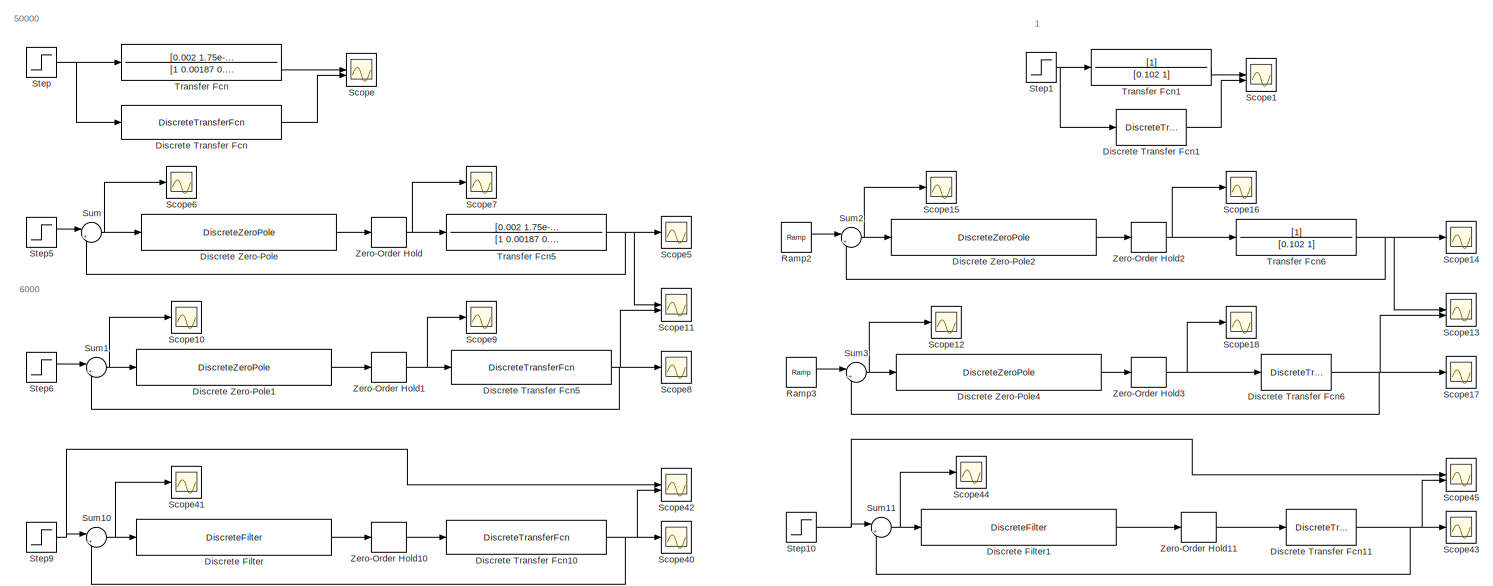
[diagram: root canvas - part 1/3, left side, full height]
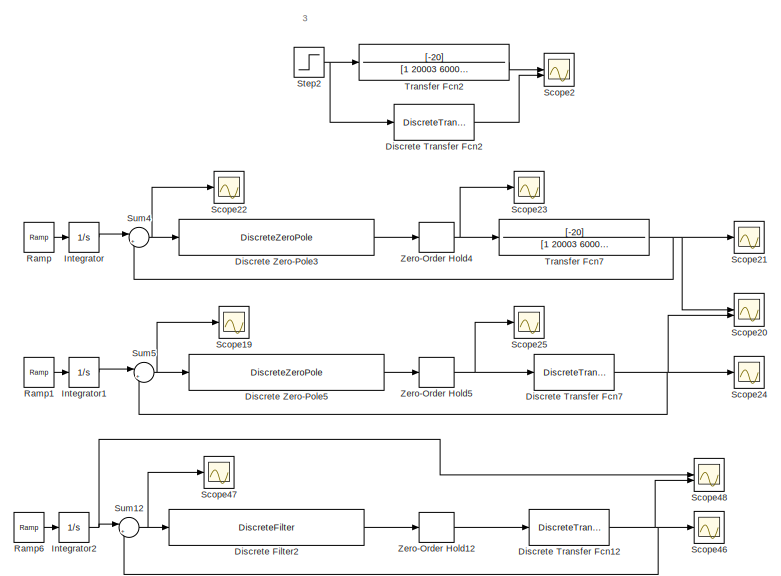
[diagram: root canvas - part 2/3, center side, full height]
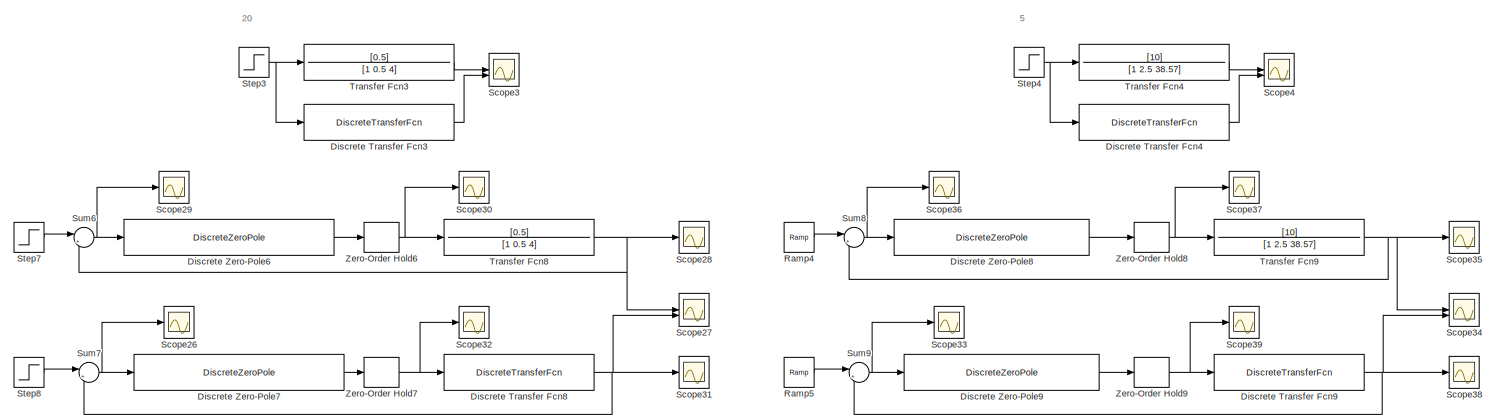
[diagram: root canvas - part 3/3, middle right region]
MODEL slx_3ba39c89f37c
KIND model
CONFIG AbsTol = auto
CONFIG EnableMultiTasking = off
CONFIG FixedStep = auto
CONFIG MaxStep = auto
CONFIG MinStep = auto
CONFIG RelTol = 1e-3
CONFIG SampleTimeConstraint = Unconstrained
CONFIG SolverName = VariableStepAuto
CONFIG StartTime = 0.0
CONFIG StopTime = 5
BLOCK [DiscreteFilter] Discrete Filter
  Denominator = conv([1, 0.4735],[1, -2, 1])
  InputPortMap = u0
  Numerator = conv([2, -2.8862, 0.9431],[1, -0.5018])/0.67
BLOCK [DiscreteFilter] Discrete Filter1
  Denominator = [1, -2, 1]
  InputPortMap = u0
  Numerator = conv([2, -1],[1, -0.745])/0.255
BLOCK [DiscreteFilter] Discrete Filter2
  Denominator = [1, -1.93e-5, 1.93e-5]
  InputPortMap = u0
  Numerator = [-1, 1, -0.942]
BLOCK [DiscreteTransferFcn] Discrete Transfer Fcn
  Denominator = [1 -1.445 0.4733]
  InputPortMap = u0
  Numerator = [0.67 -0.4735]
BLOCK [DiscreteTransferFcn] Discrete Transfer Fcn1
  Denominator = [1 -0.745]
  InputPortMap = u0
  Numerator = [0.255]
BLOCK [DiscreteTransferFcn] Discrete Transfer Fcn10
  Denominator = [1 -1.445 0.4733]
  InputPortMap = u0
  Numerator = [0.67 -0.4735]
BLOCK [DiscreteTransferFcn] Discrete Transfer Fcn11
  Denominator = [1 -0.745]
  InputPortMap = u0
  Numerator = [0.255]
BLOCK [DiscreteTransferFcn] Discrete Transfer Fcn12
  Denominator = [1 -0.942]
  InputPortMap = u0
  Numerator = [-1.93e-5]
BLOCK [DiscreteTransferFcn] Discrete Transfer Fcn2
  Denominator = [1 -0.942]
  InputPortMap = u0
  Numerator = [-1.93e-5]
BLOCK [DiscreteTransferFcn] Discrete Transfer Fcn3
  Denominator = [1 -1.754 0.904]
  InputPortMap = u0
  Numerator = [0.00937 0.00937]
BLOCK [DiscreteTransferFcn] Discrete Transfer Fcn4
  Denominator = [1 -0.544 0.6065]
  InputPortMap = u0
  Numerator = [0.1157 0.0989]
BLOCK [DiscreteTransferFcn] Discrete Transfer Fcn5
  Denominator = [1 -1.445 0.4733]
  InputPortMap = u0
  Numerator = [0.67 -0.4735]
BLOCK [DiscreteTransferFcn] Discrete Transfer Fcn6
  Denominator = [1 -0.745]
  InputPortMap = u0
  Numerator = [0.255]
BLOCK [DiscreteTransferFcn] Discrete Transfer Fcn7
  Denominator = [1 -0.942]
  InputPortMap = u0
  Numerator = [-1.93e-5]
BLOCK [DiscreteTransferFcn] Discrete Transfer Fcn8
  Denominator = [1 -1.754 0.904]
  InputPortMap = u0
  Numerator = [0.00937 0.00937]
BLOCK [DiscreteTransferFcn] Discrete Transfer Fcn9
  Denominator = [1 -0.544 0.6065]
  InputPortMap = u0
  Numerator = [0.1157 0.0989]
BLOCK [DiscreteZeroPole] Discrete Zero-Pole
  Gain = 3.25e-4
  Poles = [1 0.7364 0.7364 0.7364]
  SampleTime = 400
  Zeros = [0.9432 0.9432 0.9432]
BLOCK [DiscreteZeroPole] Discrete Zero-Pole1
  Gain = 3.25e-4
  Poles = [1 0.7364 0.7364 0.7364]
  SampleTime = 400
  Zeros = [0.9432 0.9432 0.9432]
BLOCK [DiscreteZeroPole] Discrete Zero-Pole2
  Gain = 1.031e-2
  Poles = [1 1 0.6749 0.6749 0.6749]
  SampleTime = 0.05
  Zeros = [0.745 0.745 0.745]
BLOCK [DiscreteZeroPole] Discrete Zero-Pole3
  Gain = -0.0433
  Poles = [1 1 1 0.936 0.936 0.936]
  SampleTime = 0.02
  Zeros = [0.942 0.942 0.942]
BLOCK [DiscreteZeroPole] Discrete Zero-Pole4
  Gain = 1.031e-2
  Poles = [1 1 0.6749 0.6749 0.6749]
  SampleTime = 0.05
  Zeros = [0.745 0.745 0.745]
BLOCK [DiscreteZeroPole] Discrete Zero-Pole5
  Gain = -0.0433
  Poles = [1 1 1 0.936 0.936 0.936]
  SampleTime = 0.02
  Zeros = [0.942 0.942 0.942]
BLOCK [DiscreteZeroPole] Discrete Zero-Pole6
  Gain = 0.01468
  Poles = [1 1 0.9581 0.9581 0.9581]
  SampleTime = 0.2
  Zeros = [0.9549 0.9549 0.9549]
BLOCK [DiscreteZeroPole] Discrete Zero-Pole7
  Gain = 0.01468
  Poles = [1 1 0.9581 0.9581 0.9581]
  SampleTime = 0.2
  Zeros = [0.9549 0.9549 0.9549]
BLOCK [DiscreteZeroPole] Discrete Zero-Pole8
  Gain = 3.75
  Poles = [1 1 0.952 0.952]
  SampleTime = 0.2
  Zeros = [0.717 0.717]
BLOCK [DiscreteZeroPole] Discrete Zero-Pole9
  Gain = 3.75
  Poles = [1 1 0.952 0.952]
  SampleTime = 0.2
  Zeros = [0.717 0.717]
BLOCK [Integrator] Integrator
BLOCK [Integrator] Integrator1
BLOCK [Integrator] Integrator2
BLOCK [Reference] Ramp  REF=simulink/Sources/Ramp
  SourceBlock = simulink/Sources/Ramp
  SourceType = Ramp
BLOCK [Reference] Ramp1  REF=simulink/Sources/Ramp
  SourceBlock = simulink/Sources/Ramp
  SourceType = Ramp
BLOCK [Reference] Ramp2  REF=simulink/Sources/Ramp
  SourceBlock = simulink/Sources/Ramp
  SourceType = Ramp
BLOCK [Reference] Ramp3  REF=simulink/Sources/Ramp
  SourceBlock = simulink/Sources/Ramp
  SourceType = Ramp
BLOCK [Reference] Ramp4  REF=simulink/Sources/Ramp
  SourceBlock = simulink/Sources/Ramp
  SourceType = Ramp
BLOCK [Reference] Ramp5  REF=simulink/Sources/Ramp
  SourceBlock = simulink/Sources/Ramp
  SourceType = Ramp
BLOCK [Reference] Ramp6  REF=simulink/Sources/Ramp
  SourceBlock = simulink/Sources/Ramp
  SourceType = Ramp
BLOCK [Scope] Scope
  ActiveDisplayYMaximum = 7.8698854935552909
  ActiveDisplayYMinimum = -0.87443172150614323
  Floating = off
  GraphicalSettings = {"Style":{"BackgroundColor":[0.12941176470588237,0.12941176470588237,0.12941176470588237],"AxesColor":[0.07058823529411765,0.07058823529411765,0.07058823529411765],"LabelsColor":[0.8509803921568627,0.8509803921568627,0.8509803921568627],"PreserveColors":false,"Visible":[true,true],"LineStyle":["-","-"],"LineWidth":[1.5,1.5],"BarWidth":[0.9,0.9],"LineColor":["auto","auto"],"LineFaceAlpha":[1,1],"Li...<+2148ch>
  MultipleDisplayCache = [{"MaxYLimMag":7.8698854935552909,"MaxYLimReal":7.8698854935552909,"MinYLimMag":0,"MinYLimReal":-0.87443172150614323,"PlotAsMagnitudePhase":false,"ShowGrid":true,"ShowLegend":false,"Title":"%<SignalLabel>","YLabel":""}]
  NumInputPorts = 2
  ScopeFrameLocation = window
  WasSavedAsWebScope = on
  WindowPosition = [403.000000,174.000000,560.000000,420.000000,]
BLOCK [Scope] Scope1
  ActiveDisplayYMaximum = 1.1249999999998153
  ActiveDisplayYMinimum = -0.12499999999997945
  DataLoggingVariableName = ScopeData1
  Floating = off
  GraphicalSettings = {"Style":{"BackgroundColor":[0.12941176470588237,0.12941176470588237,0.12941176470588237],"AxesColor":[0.07058823529411765,0.07058823529411765,0.07058823529411765],"LabelsColor":[0.8509803921568627,0.8509803921568627,0.8509803921568627],"PreserveColors":false,"Visible":[true,true],"LineStyle":["-","-"],"LineWidth":[1.5,1.5],"BarWidth":[0.9,0.9],"LineColor":["auto","auto"],"LineFaceAlpha":[1,1],"Li...<+2156ch>
  MultipleDisplayCache = [{"MaxYLimMag":1.1249999999998153,"MaxYLimReal":1.1249999999998153,"MinYLimMag":0,"MinYLimReal":-0.12499999999997945,"PlotAsMagnitudePhase":false,"ShowGrid":true,"ShowLegend":false,"Title":"%<SignalLabel>","YLabel":""}]
  NumInputPorts = 2
  ScopeFrameLocation = window
  WasSavedAsWebScope = on
  WindowPosition = [403.000000,174.000000,560.000000,420.000000,]
BLOCK [Scope] Scope10
  DataLoggingVariableName = ScopeData10
  Floating = off
  GraphicalSettings = {"GraphicalSettings":{"LegacySettings":true,"Style":{"Style":{"PlotType":"Auto"}}}}
  NumInputPorts = 1
  WasSavedAsWebScope = on
BLOCK [Scope] Scope11
  ActiveDisplayYMaximum = 1
  ActiveDisplayYMinimum = -1
  DataLoggingVariableName = ScopeData11
  Floating = off
  GraphicalSettings = {"Style":{"BackgroundColor":[0.12941176470588237,0.12941176470588237,0.12941176470588237],"AxesColor":[0.07058823529411765,0.07058823529411765,0.07058823529411765],"LabelsColor":[0.8509803921568627,0.8509803921568627,0.8509803921568627],"PreserveColors":false,"Visible":[true,true],"LineStyle":["-","-"],"LineWidth":[1.5,1.5],"BarWidth":[0.9,0.9],"LineColor":["auto","auto"],"LineFaceAlpha":[1,1],"Li...<+2053ch>  <repeated x5 — deduplicated; at blocks: Scope11, Scope13, Scope20, Scope27, Scope34>
  MultipleDisplayCache = [{"MaxYLimMag":1,"MaxYLimReal":1,"MinYLimMag":0,"MinYLimReal":-1,"PlotAsMagnitudePhase":false,"ShowGrid":true,"ShowLegend":false,"Title":"%<SignalLabel>","YLabel":""}]
  NumInputPorts = 2
  ScopeFrameLocation = window
  WasSavedAsWebScope = on
  WindowPosition = [403.000000,174.000000,560.000000,420.000000,]
BLOCK [Scope] Scope12
  ActiveDisplayYMaximum = 1
  ActiveDisplayYMinimum = -1
  DataLoggingVariableName = ScopeData12
  Floating = off
  GraphicalSettings = {"Style":{"BackgroundColor":[0.12941176470588237,0.12941176470588237,0.12941176470588237],"AxesColor":[0.07058823529411765,0.07058823529411765,0.07058823529411765],"LabelsColor":[0.8509803921568627,0.8509803921568627,0.8509803921568627],"PreserveColors":false,"Visible":[true],"LineStyle":["-"],"LineWidth":[1.5],"BarWidth":[0.9],"LineColor":["auto"],"LineFaceAlpha":[1],"LineEdgeAlpha":[1],"Marker":...<+1890ch>  <repeated x7 — deduplicated; at blocks: Scope12, Scope19, Scope22, Scope26, Scope29, Scope33, Scope36>
  MultipleDisplayCache = [{"MaxYLimMag":1,"MaxYLimReal":1,"MinYLimMag":0,"MinYLimReal":-1,"PlotAsMagnitudePhase":false,"ShowGrid":true,"ShowLegend":false,"Title":"%<SignalLabel>","YLabel":""}]
  NumInputPorts = 1
  ScopeFrameLocation = window
  WasSavedAsWebScope = on
  WindowPosition = [403.000000,174.000000,560.000000,420.000000,]
BLOCK [Scope] Scope13
  ActiveDisplayYMaximum = 1
  ActiveDisplayYMinimum = -1
  DataLoggingVariableName = ScopeData13
  Floating = off
  MultipleDisplayCache = [{"MaxYLimMag":1,"MaxYLimReal":1,"MinYLimMag":0,"MinYLimReal":-1,"PlotAsMagnitudePhase":false,"ShowGrid":true,"ShowLegend":false,"Title":"%<SignalLabel>","YLabel":""}]
  NumInputPorts = 2
  ScopeFrameLocation = window
  WasSavedAsWebScope = on
  WindowPosition = [403.000000,174.000000,560.000000,420.000000,]
BLOCK [Scope] Scope14
  ActiveDisplayYMaximum = 1
  ActiveDisplayYMinimum = -1
  DataLoggingVariableName = ScopeData14
  Floating = off
  GraphicalSettings = {"Style":{"BackgroundColor":[0.12941176470588237,0.12941176470588237,0.12941176470588237],"AxesColor":[0.07058823529411765,0.07058823529411765,0.07058823529411765],"LabelsColor":[0.8509803921568627,0.8509803921568627,0.8509803921568627],"PreserveColors":false,"Visible":[true],"LineStyle":["-"],"LineWidth":[1.5],"BarWidth":[0.9],"LineColor":["auto"],"LineFaceAlpha":[1],"LineEdgeAlpha":[1],"Marker":...<+1908ch>  <repeated x5 — deduplicated; at blocks: Scope14, Scope21, Scope28, Scope35, Scope5>
  MultipleDisplayCache = [{"MaxYLimMag":1,"MaxYLimReal":1,"MinYLimMag":0,"MinYLimReal":-1,"PlotAsMagnitudePhase":false,"ShowGrid":true,"ShowLegend":false,"Title":"%<SignalLabel>","YLabel":""}]
  NumInputPorts = 1
  ScopeFrameLocation = window
  WasSavedAsWebScope = on
  WindowPosition = [403.000000,174.000000,560.000000,420.000000,]
BLOCK [Scope] Scope15
  ActiveDisplayYMaximum = 1.0722110330606855
  ActiveDisplayYMinimum = -0.11913455922896504
  DataLoggingVariableName = ScopeData15
  Floating = off
  GraphicalSettings = {"Style":{"BackgroundColor":[0.12941176470588237,0.12941176470588237,0.12941176470588237],"AxesColor":[0.07058823529411765,0.07058823529411765,0.07058823529411765],"LabelsColor":[0.8509803921568627,0.8509803921568627,0.8509803921568627],"PreserveColors":false,"Visible":[true],"LineStyle":["-"],"LineWidth":[1.5],"BarWidth":[0.9],"LineColor":["auto"],"LineFaceAlpha":[1],"LineEdgeAlpha":[1],"Marker":...<+1995ch>
  MultipleDisplayCache = [{"MaxYLimMag":1.0722110330606855,"MaxYLimReal":1.0722110330606855,"MinYLimMag":0,"MinYLimReal":-0.11913455922896504,"PlotAsMagnitudePhase":false,"ShowGrid":true,"ShowLegend":false,"Title":"%<SignalLabel>","YLabel":""}]
  NumInputPorts = 1
  ScopeFrameLocation = window
  WasSavedAsWebScope = on
  WindowPosition = [403.000000,174.000000,560.000000,420.000000,]
BLOCK [Scope] Scope16
  ActiveDisplayYMaximum = 1
  ActiveDisplayYMinimum = -1
  DataLoggingVariableName = ScopeData16
  Floating = off
  GraphicalSettings = {"Style":{"BackgroundColor":[0.12941176470588237,0.12941176470588237,0.12941176470588237],"AxesColor":[0.07058823529411765,0.07058823529411765,0.07058823529411765],"LabelsColor":[0.8509803921568627,0.8509803921568627,0.8509803921568627],"PreserveColors":false,"Visible":[true],"LineStyle":["-"],"LineWidth":[1.5],"BarWidth":[0.9],"LineColor":["auto"],"LineFaceAlpha":[1],"LineEdgeAlpha":[1],"Marker":...<+1914ch>
  MultipleDisplayCache = [{"MaxYLimMag":1,"MaxYLimReal":1,"MinYLimMag":0,"MinYLimReal":-1,"PlotAsMagnitudePhase":false,"ShowGrid":true,"ShowLegend":false,"Title":"%<SignalLabel>","YLabel":""}]
  NumInputPorts = 1
  ScopeFrameLocation = window
  WasSavedAsWebScope = on
  WindowPosition = [403.000000,174.000000,560.000000,420.000000,]
BLOCK [Scope] Scope17
  ActiveDisplayYMaximum = 1
  ActiveDisplayYMinimum = -1
  DataLoggingVariableName = ScopeData17
  Floating = off
  GraphicalSettings = {"Style":{"BackgroundColor":[0.12941176470588237,0.12941176470588237,0.12941176470588237],"AxesColor":[0.07058823529411765,0.07058823529411765,0.07058823529411765],"LabelsColor":[0.8509803921568627,0.8509803921568627,0.8509803921568627],"PreserveColors":false,"Visible":[true],"LineStyle":["-"],"LineWidth":[1.5],"BarWidth":[0.9],"LineColor":["auto"],"LineFaceAlpha":[1],"LineEdgeAlpha":[1],"Marker":...<+1926ch>  <repeated x4 — deduplicated; at blocks: Scope17, Scope24, Scope38, Scope8>
  MultipleDisplayCache = [{"MaxYLimMag":1,"MaxYLimReal":1,"MinYLimMag":0,"MinYLimReal":-1,"PlotAsMagnitudePhase":false,"ShowGrid":true,"ShowLegend":false,"Title":"%<SignalLabel>","YLabel":""}]
  NumInputPorts = 1
  ScopeFrameLocation = window
  WasSavedAsWebScope = on
  WindowPosition = [403.000000,174.000000,560.000000,420.000000,]
BLOCK [Scope] Scope18
  ActiveDisplayYMaximum = 1
  ActiveDisplayYMinimum = -1
  DataLoggingVariableName = ScopeData18
  Floating = off
  GraphicalSettings = {"Style":{"BackgroundColor":[0.12941176470588237,0.12941176470588237,0.12941176470588237],"AxesColor":[0.07058823529411765,0.07058823529411765,0.07058823529411765],"LabelsColor":[0.8509803921568627,0.8509803921568627,0.8509803921568627],"PreserveColors":false,"Visible":[true],"LineStyle":["-"],"LineWidth":[1.5],"BarWidth":[0.9],"LineColor":["auto"],"LineFaceAlpha":[1],"LineEdgeAlpha":[1],"Marker":...<+1914ch>
  MultipleDisplayCache = [{"MaxYLimMag":1,"MaxYLimReal":1,"MinYLimMag":0,"MinYLimReal":-1,"PlotAsMagnitudePhase":false,"ShowGrid":true,"ShowLegend":false,"Title":"%<SignalLabel>","YLabel":""}]
  NumInputPorts = 1
  ScopeFrameLocation = window
  WasSavedAsWebScope = on
  WindowPosition = [403.000000,174.000000,560.000000,420.000000,]
BLOCK [Scope] Scope19
  ActiveDisplayYMaximum = 1
  ActiveDisplayYMinimum = -1
  DataLoggingVariableName = ScopeData19
  Floating = off
  MultipleDisplayCache = [{"MaxYLimMag":1,"MaxYLimReal":1,"MinYLimMag":0,"MinYLimReal":-1,"PlotAsMagnitudePhase":false,"ShowGrid":true,"ShowLegend":false,"Title":"%<SignalLabel>","YLabel":""}]
  NumInputPorts = 1
  ScopeFrameLocation = window
  WasSavedAsWebScope = on
  WindowPosition = [403.000000,174.000000,560.000000,420.000000,]
BLOCK [Scope] Scope2
  ActiveDisplayYMaximum = 4.1661526188254047E-5
  ActiveDisplayYMinimum = -0.0003749537356942865
  DataLoggingVariableName = ScopeData2
  Floating = off
  GraphicalSettings = {"Style":{"BackgroundColor":[0.12941176470588237,0.12941176470588237,0.12941176470588237],"AxesColor":[0.07058823529411765,0.07058823529411765,0.07058823529411765],"LabelsColor":[0.8509803921568627,0.8509803921568627,0.8509803921568627],"PreserveColors":false,"Visible":[true,true],"LineStyle":["-","-"],"LineWidth":[1.5,1.5],"BarWidth":[0.9,0.9],"LineColor":["auto","auto"],"LineFaceAlpha":[1,1],"Li...<+2176ch>
  MultipleDisplayCache = [{"MaxYLimMag":0.0003749537356942865,"MaxYLimReal":4.1661526188254047E-5,"MinYLimMag":0,"MinYLimReal":-0.0003749537356942865,"PlotAsMagnitudePhase":false,"ShowGrid":true,"ShowLegend":false,"Title":"%<SignalLabel>","YLabel":""}]
  NumInputPorts = 2
  ScopeFrameLocation = window
  WasSavedAsWebScope = on
  WindowPosition = [403.000000,174.000000,560.000000,420.000000,]
BLOCK [Scope] Scope20
  ActiveDisplayYMaximum = 1
  ActiveDisplayYMinimum = -1
  DataLoggingVariableName = ScopeData20
  Floating = off
  MultipleDisplayCache = [{"MaxYLimMag":1,"MaxYLimReal":1,"MinYLimMag":0,"MinYLimReal":-1,"PlotAsMagnitudePhase":false,"ShowGrid":true,"ShowLegend":false,"Title":"%<SignalLabel>","YLabel":""}]
  NumInputPorts = 2
  ScopeFrameLocation = window
  WasSavedAsWebScope = on
  WindowPosition = [403.000000,174.000000,560.000000,420.000000,]
BLOCK [Scope] Scope21
  ActiveDisplayYMaximum = 1
  ActiveDisplayYMinimum = -1
  DataLoggingVariableName = ScopeData21
  Floating = off
  MultipleDisplayCache = [{"MaxYLimMag":1,"MaxYLimReal":1,"MinYLimMag":0,"MinYLimReal":-1,"PlotAsMagnitudePhase":false,"ShowGrid":true,"ShowLegend":false,"Title":"%<SignalLabel>","YLabel":""}]
  NumInputPorts = 1
  ScopeFrameLocation = window
  WasSavedAsWebScope = on
  WindowPosition = [403.000000,174.000000,560.000000,420.000000,]
BLOCK [Scope] Scope22
  ActiveDisplayYMaximum = 1
  ActiveDisplayYMinimum = -1
  DataLoggingVariableName = ScopeData22
  Floating = off
  MultipleDisplayCache = [{"MaxYLimMag":1,"MaxYLimReal":1,"MinYLimMag":0,"MinYLimReal":-1,"PlotAsMagnitudePhase":false,"ShowGrid":true,"ShowLegend":false,"Title":"%<SignalLabel>","YLabel":""}]
  NumInputPorts = 1
  ScopeFrameLocation = window
  WasSavedAsWebScope = on
  WindowPosition = [403.000000,174.000000,560.000000,420.000000,]
BLOCK [Scope] Scope23
  ActiveDisplayYMaximum = 1
  ActiveDisplayYMinimum = -1
  DataLoggingVariableName = ScopeData23
  Floating = off
  GraphicalSettings = {"Style":{"BackgroundColor":[0.12941176470588237,0.12941176470588237,0.12941176470588237],"AxesColor":[0.07058823529411765,0.07058823529411765,0.07058823529411765],"LabelsColor":[0.8509803921568627,0.8509803921568627,0.8509803921568627],"PreserveColors":false,"Visible":[true],"LineStyle":["-"],"LineWidth":[1.5],"BarWidth":[0.9],"LineColor":["auto"],"LineFaceAlpha":[1],"LineEdgeAlpha":[1],"Marker":...<+1918ch>  <repeated x4 — deduplicated; at blocks: Scope23, Scope30, Scope37, Scope7>
  MultipleDisplayCache = [{"MaxYLimMag":1,"MaxYLimReal":1,"MinYLimMag":0,"MinYLimReal":-1,"PlotAsMagnitudePhase":false,"ShowGrid":true,"ShowLegend":false,"Title":"%<SignalLabel>","YLabel":""}]
  NumInputPorts = 1
  ScopeFrameLocation = window
  WasSavedAsWebScope = on
  WindowPosition = [403.000000,174.000000,560.000000,420.000000,]
BLOCK [Scope] Scope24
  ActiveDisplayYMaximum = 1
  ActiveDisplayYMinimum = -1
  DataLoggingVariableName = ScopeData24
  Floating = off
  MultipleDisplayCache = [{"MaxYLimMag":1,"MaxYLimReal":1,"MinYLimMag":0,"MinYLimReal":-1,"PlotAsMagnitudePhase":false,"ShowGrid":true,"ShowLegend":false,"Title":"%<SignalLabel>","YLabel":""}]
  NumInputPorts = 1
  ScopeFrameLocation = window
  WasSavedAsWebScope = on
  WindowPosition = [403.000000,174.000000,560.000000,420.000000,]
BLOCK [Scope] Scope25
  ActiveDisplayYMaximum = 1
  ActiveDisplayYMinimum = -1
  DataLoggingVariableName = ScopeData25
  Floating = off
  GraphicalSettings = {"Style":{"BackgroundColor":[0.12941176470588237,0.12941176470588237,0.12941176470588237],"AxesColor":[0.07058823529411765,0.07058823529411765,0.07058823529411765],"LabelsColor":[0.8509803921568627,0.8509803921568627,0.8509803921568627],"PreserveColors":false,"Visible":[true],"LineStyle":["-"],"LineWidth":[1.5],"BarWidth":[0.9],"LineColor":["auto"],"LineFaceAlpha":[1],"LineEdgeAlpha":[1],"Marker":...<+1920ch>  <repeated x4 — deduplicated; at blocks: Scope25, Scope32, Scope39, Scope9>
  MultipleDisplayCache = [{"MaxYLimMag":1,"MaxYLimReal":1,"MinYLimMag":0,"MinYLimReal":-1,"PlotAsMagnitudePhase":false,"ShowGrid":true,"ShowLegend":false,"Title":"%<SignalLabel>","YLabel":""}]
  NumInputPorts = 1
  ScopeFrameLocation = window
  WasSavedAsWebScope = on
  WindowPosition = [403.000000,174.000000,560.000000,420.000000,]
BLOCK [Scope] Scope26
  ActiveDisplayYMaximum = 10.469118263575202
  ActiveDisplayYMinimum = -1.1632353626194667
  DataLoggingVariableName = ScopeData26
  Floating = off
  MultipleDisplayCache = [{"MaxYLimMag":10.469118263575202,"MaxYLimReal":10.469118263575202,"MinYLimMag":0,"MinYLimReal":-1.1632353626194667,"PlotAsMagnitudePhase":false,"ShowGrid":true,"ShowLegend":false,"Title":"%<SignalLabel>","YLabel":""}]
  NumInputPorts = 1
  ScopeFrameLocation = window
  WasSavedAsWebScope = on
  WindowPosition = [403.000000,174.000000,560.000000,420.000000,]
BLOCK [Scope] Scope27
  ActiveDisplayYMaximum = 1
  ActiveDisplayYMinimum = -1
  DataLoggingVariableName = ScopeData27
  Floating = off
  MultipleDisplayCache = [{"MaxYLimMag":1,"MaxYLimReal":1,"MinYLimMag":0,"MinYLimReal":-1,"PlotAsMagnitudePhase":false,"ShowGrid":true,"ShowLegend":false,"Title":"%<SignalLabel>","YLabel":""}]
  NumInputPorts = 2
  ScopeFrameLocation = window
  WasSavedAsWebScope = on
  WindowPosition = [403.000000,174.000000,560.000000,420.000000,]
BLOCK [Scope] Scope28
  ActiveDisplayYMaximum = 11.734447850973403
  ActiveDisplayYMinimum = -7.3434503553882573
  DataLoggingVariableName = ScopeData28
  Floating = off
  MultipleDisplayCache = [{"MaxYLimMag":11.734447850973403,"MaxYLimReal":11.734447850973403,"MinYLimMag":0,"MinYLimReal":-7.3434503553882573,"PlotAsMagnitudePhase":false,"ShowGrid":true,"ShowLegend":false,"Title":"%<SignalLabel>","YLabel":""}]
  NumInputPorts = 1
  ScopeFrameLocation = window
  WasSavedAsWebScope = on
  WindowPosition = [403.000000,174.000000,560.000000,420.000000,]
BLOCK [Scope] Scope29
  ActiveDisplayYMaximum = 1
  ActiveDisplayYMinimum = -1
  DataLoggingVariableName = ScopeData29
  Floating = off
  MultipleDisplayCache = [{"MaxYLimMag":1,"MaxYLimReal":1,"MinYLimMag":0,"MinYLimReal":-1,"PlotAsMagnitudePhase":false,"ShowGrid":true,"ShowLegend":false,"Title":"%<SignalLabel>","YLabel":""}]
  NumInputPorts = 1
  ScopeFrameLocation = window
  WasSavedAsWebScope = on
  WindowPosition = [403.000000,174.000000,560.000000,420.000000,]
BLOCK [Scope] Scope3
  ActiveDisplayYMaximum = 0.2352620619436897
  ActiveDisplayYMinimum = -0.026140229104854404
  DataLoggingVariableName = ScopeData3
  Floating = off
  GraphicalSettings = {"Style":{"BackgroundColor":[0.12941176470588237,0.12941176470588237,0.12941176470588237],"AxesColor":[0.07058823529411765,0.07058823529411765,0.07058823529411765],"LabelsColor":[0.8509803921568627,0.8509803921568627,0.8509803921568627],"PreserveColors":false,"Visible":[true,true],"LineStyle":["-","-"],"LineWidth":[1.5,1.5],"BarWidth":[0.9,0.9],"LineColor":["auto","auto"],"LineFaceAlpha":[1,1],"Li...<+2160ch>
  MultipleDisplayCache = [{"MaxYLimMag":0.2352620619436897,"MaxYLimReal":0.2352620619436897,"MinYLimMag":0,"MinYLimReal":-0.026140229104854404,"PlotAsMagnitudePhase":false,"ShowGrid":true,"ShowLegend":false,"Title":"%<SignalLabel>","YLabel":""}]
  NumInputPorts = 2
  ScopeFrameLocation = window
  WasSavedAsWebScope = on
  WindowPosition = [403.000000,174.000000,560.000000,420.000000,]
BLOCK [Scope] Scope30
  ActiveDisplayYMaximum = 1
  ActiveDisplayYMinimum = -1
  DataLoggingVariableName = ScopeData30
  Floating = off
  MultipleDisplayCache = [{"MaxYLimMag":1,"MaxYLimReal":1,"MinYLimMag":0,"MinYLimReal":-1,"PlotAsMagnitudePhase":false,"ShowGrid":true,"ShowLegend":false,"Title":"%<SignalLabel>","YLabel":""}]
  NumInputPorts = 1
  ScopeFrameLocation = window
  WasSavedAsWebScope = on
  WindowPosition = [403.000000,174.000000,560.000000,420.000000,]
BLOCK [Scope] Scope31
  ActiveDisplayYMaximum = 1
  ActiveDisplayYMinimum = -1
  DataLoggingVariableName = ScopeData31
  Floating = off
  GraphicalSettings = {"Style":{"BackgroundColor":[0.12941176470588237,0.12941176470588237,0.12941176470588237],"AxesColor":[0.07058823529411765,0.07058823529411765,0.07058823529411765],"LabelsColor":[0.8509803921568627,0.8509803921568627,0.8509803921568627],"PreserveColors":false,"Visible":[true],"LineStyle":["-"],"LineWidth":[1.5],"BarWidth":[0.9],"LineColor":["auto"],"LineFaceAlpha":[1],"LineEdgeAlpha":[1],"Marker":...<+2024ch>
  MultipleDisplayCache = [{"MaxYLimMag":1,"MaxYLimReal":1,"MinYLimMag":0,"MinYLimReal":-1,"PlotAsMagnitudePhase":false,"ShowGrid":true,"ShowLegend":false,"Title":"%<SignalLabel>","YLabel":""}]
  NumInputPorts = 1
  ScopeFrameLocation = window
  WasSavedAsWebScope = on
  WindowPosition = [403.000000,174.000000,560.000000,420.000000,]
BLOCK [Scope] Scope32
  ActiveDisplayYMaximum = 23943.105530268582
  ActiveDisplayYMinimum = -2660.345058918731
  DataLoggingVariableName = ScopeData32
  Floating = off
  MultipleDisplayCache = [{"MaxYLimMag":23943.105530268582,"MaxYLimReal":23943.105530268582,"MinYLimMag":0,"MinYLimReal":-2660.345058918731,"PlotAsMagnitudePhase":false,"ShowGrid":true,"ShowLegend":false,"Title":"%<SignalLabel>","YLabel":""}]
  NumInputPorts = 1
  ScopeFrameLocation = window
  WasSavedAsWebScope = on
BLOCK [Scope] Scope33
  ActiveDisplayYMaximum = 976.6617763905931
  ActiveDisplayYMinimum = -6005.6817208247221
  DataLoggingVariableName = ScopeData33
  Floating = off
  MultipleDisplayCache = [{"MaxYLimMag":6005.6817208247221,"MaxYLimReal":976.6617763905931,"MinYLimMag":0,"MinYLimReal":-6005.6817208247221,"PlotAsMagnitudePhase":false,"ShowGrid":true,"ShowLegend":false,"Title":"%<SignalLabel>","YLabel":""}]
  NumInputPorts = 1
  ScopeFrameLocation = window
  WasSavedAsWebScope = on
  WindowPosition = [403.000000,174.000000,560.000000,420.000000,]
BLOCK [Scope] Scope34
  ActiveDisplayYMaximum = 10006.031814391354
  ActiveDisplayYMinimum = -16759.782546183404
  DataLoggingVariableName = ScopeData34
  Floating = off
  MultipleDisplayCache = [{"MaxYLimMag":16759.782546183404,"MaxYLimReal":10006.031814391354,"MinYLimMag":0,"MinYLimReal":-16759.782546183404,"PlotAsMagnitudePhase":false,"ShowGrid":true,"ShowLegend":false,"Title":"%<SignalLabel>","YLabel":""}]
  NumInputPorts = 2
  ScopeFrameLocation = window
  WasSavedAsWebScope = on
  WindowPosition = [403.000000,174.000000,560.000000,420.000000,]
BLOCK [Scope] Scope35
  ActiveDisplayYMaximum = 1
  ActiveDisplayYMinimum = -1
  DataLoggingVariableName = ScopeData35
  Floating = off
  MultipleDisplayCache = [{"MaxYLimMag":1,"MaxYLimReal":1,"MinYLimMag":0,"MinYLimReal":-1,"PlotAsMagnitudePhase":false,"ShowGrid":true,"ShowLegend":false,"Title":"%<SignalLabel>","YLabel":""}]
  NumInputPorts = 1
  ScopeFrameLocation = window
  WasSavedAsWebScope = on
  WindowPosition = [403.000000,174.000000,560.000000,420.000000,]
BLOCK [Scope] Scope36
  ActiveDisplayYMaximum = 1
  ActiveDisplayYMinimum = -1
  DataLoggingVariableName = ScopeData36
  Floating = off
  MultipleDisplayCache = [{"MaxYLimMag":1,"MaxYLimReal":1,"MinYLimMag":0,"MinYLimReal":-1,"PlotAsMagnitudePhase":false,"ShowGrid":true,"ShowLegend":false,"Title":"%<SignalLabel>","YLabel":""}]
  NumInputPorts = 1
  ScopeFrameLocation = window
  WasSavedAsWebScope = on
  WindowPosition = [403.000000,174.000000,560.000000,420.000000,]
BLOCK [Scope] Scope37
  ActiveDisplayYMaximum = 1
  ActiveDisplayYMinimum = -1
  DataLoggingVariableName = ScopeData37
  Floating = off
  MultipleDisplayCache = [{"MaxYLimMag":1,"MaxYLimReal":1,"MinYLimMag":0,"MinYLimReal":-1,"PlotAsMagnitudePhase":false,"ShowGrid":true,"ShowLegend":false,"Title":"%<SignalLabel>","YLabel":""}]
  NumInputPorts = 1
  ScopeFrameLocation = window
  WasSavedAsWebScope = on
  WindowPosition = [403.000000,174.000000,560.000000,420.000000,]
BLOCK [Scope] Scope38
  ActiveDisplayYMaximum = 6010.6442208247227
  ActiveDisplayYMinimum = -973.32427639059324
  DataLoggingVariableName = ScopeData38
  Floating = off
  MultipleDisplayCache = [{"MaxYLimMag":6010.6442208247227,"MaxYLimReal":6010.6442208247227,"MinYLimMag":0,"MinYLimReal":-973.32427639059324,"PlotAsMagnitudePhase":false,"ShowGrid":true,"ShowLegend":false,"Title":"%<SignalLabel>","YLabel":""}]
  NumInputPorts = 1
  ScopeFrameLocation = window
  WasSavedAsWebScope = on
  WindowPosition = [403.000000,174.000000,560.000000,420.000000,]
BLOCK [Scope] Scope39
  ActiveDisplayYMaximum = 23943.105530268582
  ActiveDisplayYMinimum = -2660.345058918731
  DataLoggingVariableName = ScopeData39
  Floating = off
  MultipleDisplayCache = [{"MaxYLimMag":23943.105530268582,"MaxYLimReal":23943.105530268582,"MinYLimMag":0,"MinYLimReal":-2660.345058918731,"PlotAsMagnitudePhase":false,"ShowGrid":true,"ShowLegend":false,"Title":"%<SignalLabel>","YLabel":""}]
  NumInputPorts = 1
  ScopeFrameLocation = window
  WasSavedAsWebScope = on
BLOCK [Scope] Scope4
  ActiveDisplayYMaximum = 0.44435818257774068
  ActiveDisplayYMinimum = -0.049373131397526727
  DataLoggingVariableName = ScopeData4
  Floating = off
  GraphicalSettings = {"Style":{"BackgroundColor":[0.12941176470588237,0.12941176470588237,0.12941176470588237],"AxesColor":[0.07058823529411765,0.07058823529411765,0.07058823529411765],"LabelsColor":[0.8509803921568627,0.8509803921568627,0.8509803921568627],"PreserveColors":false,"Visible":[true,true],"LineStyle":["-","-"],"LineWidth":[1.5,1.5],"BarWidth":[0.9,0.9],"LineColor":["auto","auto"],"LineFaceAlpha":[1,1],"Li...<+2158ch>
  MultipleDisplayCache = [{"MaxYLimMag":0.44435818257774068,"MaxYLimReal":0.44435818257774068,"MinYLimMag":0,"MinYLimReal":-0.049373131397526727,"PlotAsMagnitudePhase":false,"ShowGrid":true,"ShowLegend":false,"Title":"%<SignalLabel>","YLabel":""}]
  NumInputPorts = 2
  ScopeFrameLocation = window
  WasSavedAsWebScope = on
  WindowPosition = [403.000000,174.000000,560.000000,420.000000,]
BLOCK [Scope] Scope40
  ActiveDisplayYMaximum = 1
  ActiveDisplayYMinimum = -1
  DataLoggingVariableName = ScopeData40
  Floating = off
  GraphicalSettings = {"Style":{"BackgroundColor":[0.12941176470588237,0.12941176470588237,0.12941176470588237],"AxesColor":[0.07058823529411765,0.07058823529411765,0.07058823529411765],"LabelsColor":[0.8509803921568627,0.8509803921568627,0.8509803921568627],"PreserveColors":false,"Visible":[true],"LineStyle":["-"],"LineWidth":[1.5],"BarWidth":[0.9],"LineColor":["auto"],"LineFaceAlpha":[1],"LineEdgeAlpha":[1],"Marker":...<+1928ch>  <repeated x3 — deduplicated; at blocks: Scope40, Scope43, Scope46>
  MultipleDisplayCache = [{"MaxYLimMag":1,"MaxYLimReal":1,"MinYLimMag":0,"MinYLimReal":-1,"PlotAsMagnitudePhase":false,"ShowGrid":true,"ShowLegend":false,"Title":"%<SignalLabel>","YLabel":""}]
  NumInputPorts = 1
  ScopeFrameLocation = window
  WasSavedAsWebScope = on
  WindowPosition = [403.000000,174.000000,560.000000,420.000000,]
BLOCK [Scope] Scope41
  DataLoggingVariableName = ScopeData41
  Floating = off
  GraphicalSettings = {"GraphicalSettings":{"LegacySettings":true,"Style":{"Style":{"PlotType":"Auto"}}}}
  NumInputPorts = 1
  WasSavedAsWebScope = on
BLOCK [Scope] Scope42
  ActiveDisplayYMaximum = 19001.265185022872
  ActiveDisplayYMinimum = -11114.4553559121
  DataLoggingVariableName = ScopeData42
  Floating = off
  GraphicalSettings = {"Style":{"BackgroundColor":[0.12941176470588237,0.12941176470588237,0.12941176470588237],"AxesColor":[0.07058823529411765,0.07058823529411765,0.07058823529411765],"LabelsColor":[0.8509803921568627,0.8509803921568627,0.8509803921568627],"PreserveColors":false,"Visible":[true,true],"LineStyle":["-","-"],"LineWidth":[1.5,1.5],"BarWidth":[0.9,0.9],"LineColor":["auto","auto"],"LineFaceAlpha":[1,1],"Li...<+2039ch>
  MultipleDisplayCache = [{"MaxYLimMag":19001.265185022872,"MaxYLimReal":19001.265185022872,"MinYLimMag":0,"MinYLimReal":-11114.4553559121,"PlotAsMagnitudePhase":false,"ShowGrid":true,"ShowLegend":false,"Title":"%<SignalLabel>","YLabel":""}]
  NumInputPorts = 2
  ScopeFrameLocation = window
  WasSavedAsWebScope = on
  WindowPosition = [403.000000,174.000000,560.000000,420.000000,]
BLOCK [Scope] Scope43
  ActiveDisplayYMaximum = 9.5632271965801024E+8
  ActiveDisplayYMinimum = -2.5344855037279E+9
  DataLoggingVariableName = ScopeData43
  Floating = off
  MultipleDisplayCache = [{"MaxYLimMag":2.5344855037279E+9,"MaxYLimReal":9.5632271965801024E+8,"MinYLimMag":0,"MinYLimReal":-2.5344855037279E+9,"PlotAsMagnitudePhase":false,"ShowGrid":true,"ShowLegend":false,"Title":"%<SignalLabel>","YLabel":""}]
  NumInputPorts = 1
  ScopeFrameLocation = window
  WasSavedAsWebScope = on
  WindowPosition = [403.000000,174.000000,560.000000,420.000000,]
BLOCK [Scope] Scope44
  ActiveDisplayYMaximum = 2.5344855047279E+9
  ActiveDisplayYMinimum = -9.5632271865801024E+8
  DataLoggingVariableName = ScopeData44
  Floating = off
  GraphicalSettings = {"Style":{"BackgroundColor":[0.12941176470588237,0.12941176470588237,0.12941176470588237],"AxesColor":[0.07058823529411765,0.07058823529411765,0.07058823529411765],"LabelsColor":[0.8509803921568627,0.8509803921568627,0.8509803921568627],"PreserveColors":false,"Visible":[true],"LineStyle":["-"],"LineWidth":[1.5],"BarWidth":[0.9],"LineColor":["auto"],"LineFaceAlpha":[1],"LineEdgeAlpha":[1],"Marker":...<+1892ch>
  MultipleDisplayCache = [{"MaxYLimMag":2.5344855047279E+9,"MaxYLimReal":2.5344855047279E+9,"MinYLimMag":0,"MinYLimReal":-9.5632271865801024E+8,"PlotAsMagnitudePhase":false,"ShowGrid":true,"ShowLegend":false,"Title":"%<SignalLabel>","YLabel":""}]
  NumInputPorts = 1
  ScopeFrameLocation = window
  WasSavedAsWebScope = on
  WindowPosition = [403.000000,174.000000,560.000000,420.000000,]
BLOCK [Scope] Scope45
  ActiveDisplayYMaximum = 9.5632271965801024E+8
  ActiveDisplayYMinimum = -2.5344855037279E+9
  DataLoggingVariableName = ScopeData45
  Floating = off
  GraphicalSettings = {"Style":{"BackgroundColor":[0.12941176470588237,0.12941176470588237,0.12941176470588237],"AxesColor":[0.07058823529411765,0.07058823529411765,0.07058823529411765],"LabelsColor":[0.8509803921568627,0.8509803921568627,0.8509803921568627],"PreserveColors":false,"Visible":[true,true],"LineStyle":["-","-"],"LineWidth":[1.5,1.5],"BarWidth":[0.9,0.9],"LineColor":["auto","auto"],"LineFaceAlpha":[1,1],"Li...<+2041ch>
  MultipleDisplayCache = [{"MaxYLimMag":2.5344855037279E+9,"MaxYLimReal":9.5632271965801024E+8,"MinYLimMag":0,"MinYLimReal":-2.5344855037279E+9,"PlotAsMagnitudePhase":false,"ShowGrid":true,"ShowLegend":false,"Title":"%<SignalLabel>","YLabel":""}]
  NumInputPorts = 2
  ScopeFrameLocation = window
  WasSavedAsWebScope = on
  WindowPosition = [403.000000,174.000000,560.000000,420.000000,]
BLOCK [Scope] Scope46
  ActiveDisplayYMaximum = 0.0012464828163498813
  ActiveDisplayYMinimum = -0.00013849809070554233
  DataLoggingVariableName = ScopeData46
  Floating = off
  MultipleDisplayCache = [{"MaxYLimMag":0.0012464828163498813,"MaxYLimReal":0.0012464828163498813,"MinYLimMag":0,"MinYLimReal":-0.00013849809070554233,"PlotAsMagnitudePhase":false,"ShowGrid":true,"ShowLegend":false,"Title":"%<SignalLabel>","YLabel":""}]
  NumInputPorts = 1
  ScopeFrameLocation = window
  WasSavedAsWebScope = on
  WindowPosition = [403.000000,174.000000,560.000000,420.000000,]
BLOCK [Scope] Scope47
  ActiveDisplayYMaximum = 5.0662876107473842
  ActiveDisplayYMinimum = -0.56292084563859812
  DataLoggingVariableName = ScopeData47
  Floating = off
  GraphicalSettings = {"Style":{"BackgroundColor":[0.12941176470588237,0.12941176470588237,0.12941176470588237],"AxesColor":[0.07058823529411765,0.07058823529411765,0.07058823529411765],"LabelsColor":[0.8509803921568627,0.8509803921568627,0.8509803921568627],"PreserveColors":false,"Visible":[true],"LineStyle":["-"],"LineWidth":[1.5],"BarWidth":[0.9],"LineColor":["auto"],"LineFaceAlpha":[1],"LineEdgeAlpha":[1],"Marker":...<+1892ch>
  MultipleDisplayCache = [{"MaxYLimMag":5.0662876107473842,"MaxYLimReal":5.0662876107473842,"MinYLimMag":0,"MinYLimReal":-0.56292084563859812,"PlotAsMagnitudePhase":false,"ShowGrid":true,"ShowLegend":false,"Title":"%<SignalLabel>","YLabel":""}]
  NumInputPorts = 1
  ScopeFrameLocation = window
  WasSavedAsWebScope = on
  WindowPosition = [403.000000,174.000000,560.000000,420.000000,]
BLOCK [Scope] Scope48
  ActiveDisplayYMaximum = 5.0675340935637339
  ActiveDisplayYMinimum = -0.56305934372930366
  DataLoggingVariableName = ScopeData48
  Floating = off
  GraphicalSettings = {"Style":{"BackgroundColor":[0.12941176470588237,0.12941176470588237,0.12941176470588237],"AxesColor":[0.07058823529411765,0.07058823529411765,0.07058823529411765],"LabelsColor":[0.8509803921568627,0.8509803921568627,0.8509803921568627],"PreserveColors":false,"Visible":[true,true],"LineStyle":["-","-"],"LineWidth":[1.5,1.5],"BarWidth":[0.9,0.9],"LineColor":["auto","auto"],"LineFaceAlpha":[1,1],"Li...<+2051ch>
  MultipleDisplayCache = [{"MaxYLimMag":5.0675340935637339,"MaxYLimReal":5.0675340935637339,"MinYLimMag":0,"MinYLimReal":-0.56305934372930366,"PlotAsMagnitudePhase":false,"ShowGrid":true,"ShowLegend":false,"Title":"%<SignalLabel>","YLabel":""}]
  NumInputPorts = 2
  ScopeFrameLocation = window
  WasSavedAsWebScope = on
  WindowPosition = [403.000000,174.000000,560.000000,420.000000,]
BLOCK [Scope] Scope5
  ActiveDisplayYMaximum = 1
  ActiveDisplayYMinimum = -1
  DataLoggingVariableName = ScopeData5
  Floating = off
  MultipleDisplayCache = [{"MaxYLimMag":1,"MaxYLimReal":1,"MinYLimMag":0,"MinYLimReal":-1,"PlotAsMagnitudePhase":false,"ShowGrid":true,"ShowLegend":false,"Title":"%<SignalLabel>","YLabel":""}]
  NumInputPorts = 1
  ScopeFrameLocation = window
  WasSavedAsWebScope = on
  WindowPosition = [403.000000,174.000000,560.000000,420.000000,]
BLOCK [Scope] Scope6
  ActiveDisplayYMaximum = 1
  ActiveDisplayYMinimum = -1
  DataLoggingVariableName = ScopeData6
  Floating = off
  GraphicalSettings = {"Style":{"BackgroundColor":[0.12941176470588237,0.12941176470588237,0.12941176470588237],"AxesColor":[0.07058823529411765,0.07058823529411765,0.07058823529411765],"LabelsColor":[0.8509803921568627,0.8509803921568627,0.8509803921568627],"PreserveColors":false,"Visible":[true],"LineStyle":["-"],"LineWidth":[1.5],"BarWidth":[0.9],"LineColor":["auto"],"LineFaceAlpha":[1],"LineEdgeAlpha":[1],"Marker":...<+1888ch>
  MultipleDisplayCache = [{"MaxYLimMag":1,"MaxYLimReal":1,"MinYLimMag":0,"MinYLimReal":-1,"PlotAsMagnitudePhase":false,"ShowGrid":true,"ShowLegend":false,"Title":"%<SignalLabel>","YLabel":""}]
  NumInputPorts = 1
  ScopeFrameLocation = window
  WasSavedAsWebScope = on
  WindowPosition = [403.000000,174.000000,560.000000,420.000000,]
BLOCK [Scope] Scope7
  ActiveDisplayYMaximum = 1
  ActiveDisplayYMinimum = -1
  DataLoggingVariableName = ScopeData7
  Floating = off
  MultipleDisplayCache = [{"MaxYLimMag":1,"MaxYLimReal":1,"MinYLimMag":0,"MinYLimReal":-1,"PlotAsMagnitudePhase":false,"ShowGrid":true,"ShowLegend":false,"Title":"%<SignalLabel>","YLabel":""}]
  NumInputPorts = 1
  ScopeFrameLocation = window
  WasSavedAsWebScope = on
  WindowPosition = [403.000000,174.000000,560.000000,420.000000,]
BLOCK [Scope] Scope8
  ActiveDisplayYMaximum = 1
  ActiveDisplayYMinimum = -1
  DataLoggingVariableName = ScopeData8
  Floating = off
  MultipleDisplayCache = [{"MaxYLimMag":1,"MaxYLimReal":1,"MinYLimMag":0,"MinYLimReal":-1,"PlotAsMagnitudePhase":false,"ShowGrid":true,"ShowLegend":false,"Title":"%<SignalLabel>","YLabel":""}]
  NumInputPorts = 1
  ScopeFrameLocation = window
  WasSavedAsWebScope = on
  WindowPosition = [403.000000,174.000000,560.000000,420.000000,]
BLOCK [Scope] Scope9
  ActiveDisplayYMaximum = 1
  ActiveDisplayYMinimum = -1
  DataLoggingVariableName = ScopeData9
  Floating = off
  MultipleDisplayCache = [{"MaxYLimMag":1,"MaxYLimReal":1,"MinYLimMag":0,"MinYLimReal":-1,"PlotAsMagnitudePhase":false,"ShowGrid":true,"ShowLegend":false,"Title":"%<SignalLabel>","YLabel":""}]
  NumInputPorts = 1
  ScopeFrameLocation = window
  WasSavedAsWebScope = on
  WindowPosition = [403.000000,174.000000,560.000000,420.000000,]
BLOCK [Step] Step
  SampleTime = 0
  Time = 0
BLOCK [Step] Step1
  SampleTime = 0
  Time = 0
BLOCK [Step] Step10
  SampleTime = 0
  Time = 0
BLOCK [Step] Step2
  SampleTime = 0
  Time = 0
BLOCK [Step] Step3
  SampleTime = 0
  Time = 0
BLOCK [Step] Step4
  SampleTime = 0
  Time = 0
BLOCK [Step] Step5
  SampleTime = 0
  Time = 0
BLOCK [Step] Step6
  SampleTime = 0
  Time = 0
BLOCK [Step] Step7
  SampleTime = 0
  Time = 0
BLOCK [Step] Step8
  SampleTime = 0
  Time = 0
BLOCK [Step] Step9
  SampleTime = 0
  Time = 0
BLOCK [Sum] Sum
  Inputs = |+-
BLOCK [Sum] Sum1
  Inputs = |+-
BLOCK [Sum] Sum10
  Inputs = |+-
BLOCK [Sum] Sum11
  Inputs = |+-
BLOCK [Sum] Sum12
  Inputs = |+-
BLOCK [Sum] Sum2
  Inputs = |+-
BLOCK [Sum] Sum3
  Inputs = |+-
BLOCK [Sum] Sum4
  Inputs = |+-
BLOCK [Sum] Sum5
  Inputs = |+-
BLOCK [Sum] Sum6
  Inputs = |+-
BLOCK [Sum] Sum7
  Inputs = |+-
BLOCK [Sum] Sum8
  Inputs = |+-
BLOCK [Sum] Sum9
  Inputs = |+-
BLOCK [TransferFcn] Transfer Fcn
  Denominator = [1 0.00187 0.25e-6]
  Numerator = [0.002 1.75e-6]
BLOCK [TransferFcn] Transfer Fcn1
  Denominator = [0.102 1]
BLOCK [TransferFcn] Transfer Fcn2
  Denominator = [1 20003 60000]
  Numerator = [-20]
BLOCK [TransferFcn] Transfer Fcn3
  Denominator = [1 0.5 4]
  Numerator = [0.5]
BLOCK [TransferFcn] Transfer Fcn4
  Denominator = [1 2.5 38.57]
  Numerator = [10]
BLOCK [TransferFcn] Transfer Fcn5
  Denominator = [1 0.00187 0.25e-6]
  Numerator = [0.002 1.75e-6]
BLOCK [TransferFcn] Transfer Fcn6
  Denominator = [0.102 1]
BLOCK [TransferFcn] Transfer Fcn7
  Denominator = [1 20003 60000]
  Numerator = [-20]
BLOCK [TransferFcn] Transfer Fcn8
  Denominator = [1 0.5 4]
  Numerator = [0.5]
BLOCK [TransferFcn] Transfer Fcn9
  Denominator = [1 2.5 38.57]
  Numerator = [10]
BLOCK [ZeroOrderHold] Zero-Order Hold
  SampleTime = 400
BLOCK [ZeroOrderHold] Zero-Order Hold1
  SampleTime = 400
BLOCK [ZeroOrderHold] Zero-Order Hold10
  SampleTime = 400
BLOCK [ZeroOrderHold] Zero-Order Hold11
  SampleTime = 0.03
BLOCK [ZeroOrderHold] Zero-Order Hold12
  SampleTime = 0.02
BLOCK [ZeroOrderHold] Zero-Order Hold2
  SampleTime = 0.05
BLOCK [ZeroOrderHold] Zero-Order Hold3
  SampleTime = 0.05
BLOCK [ZeroOrderHold] Zero-Order Hold4
  SampleTime = 0.02
BLOCK [ZeroOrderHold] Zero-Order Hold5
  SampleTime = 0.02
BLOCK [ZeroOrderHold] Zero-Order Hold6
  SampleTime = 0.2
BLOCK [ZeroOrderHold] Zero-Order Hold7
  SampleTime = 0.2
BLOCK [ZeroOrderHold] Zero-Order Hold8
  SampleTime = 0.2
BLOCK [ZeroOrderHold] Zero-Order Hold9
  SampleTime = 0.2
ANNOTATION (root): 1
ANNOTATION (root): 20
ANNOTATION (root): 3
ANNOTATION (root): 5
ANNOTATION (root): 50000
ANNOTATION (root): 6000
LINE Discrete Filter1:1 -> Zero-Order Hold11:1
LINE Discrete Filter2:1 -> Zero-Order Hold12:1
LINE Discrete Filter:1 -> Zero-Order Hold10:1
NET Discrete Transfer Fcn10:1 -> Scope40:1, Scope42:2, Sum10:2
NET Discrete Transfer Fcn11:1 -> Scope43:1, Scope45:2, Sum11:2
NET Discrete Transfer Fcn12:1 -> Scope46:1, Scope48:2, Sum12:2
LINE Discrete Transfer Fcn1:1 -> Scope1:2
LINE Discrete Transfer Fcn2:1 -> Scope2:2
LINE Discrete Transfer Fcn3:1 -> Scope3:2
LINE Discrete Transfer Fcn4:1 -> Scope4:2
NET Discrete Transfer Fcn5:1 -> Scope11:2, Scope8:1, Sum1:2
NET Discrete Transfer Fcn6:1 -> Scope13:2, Scope17:1, Sum3:2
NET Discrete Transfer Fcn7:1 -> Scope20:2, Scope24:1, Sum5:2
NET Discrete Transfer Fcn8:1 -> Scope27:2, Scope31:1, Sum7:2
NET Discrete Transfer Fcn9:1 -> Scope34:2, Scope38:1, Sum9:2
LINE Discrete Transfer Fcn:1 -> Scope:2
LINE Discrete Zero-Pole1:1 -> Zero-Order Hold1:1
LINE Discrete Zero-Pole2:1 -> Zero-Order Hold2:1
LINE Discrete Zero-Pole3:1 -> Zero-Order Hold4:1
LINE Discrete Zero-Pole4:1 -> Zero-Order Hold3:1
LINE Discrete Zero-Pole5:1 -> Zero-Order Hold5:1
LINE Discrete Zero-Pole6:1 -> Zero-Order Hold6:1
LINE Discrete Zero-Pole7:1 -> Zero-Order Hold7:1
LINE Discrete Zero-Pole8:1 -> Zero-Order Hold8:1
LINE Discrete Zero-Pole9:1 -> Zero-Order Hold9:1
LINE Discrete Zero-Pole:1 -> Zero-Order Hold:1
LINE Integrator1:1 -> Sum5:1
NET Integrator2:1 -> Scope48:1, Sum12:1
LINE Integrator:1 -> Sum4:1
LINE Ramp1:1 -> Integrator1:1
LINE Ramp2:1 -> Sum2:1
LINE Ramp3:1 -> Sum3:1
LINE Ramp4:1 -> Sum8:1
LINE Ramp5:1 -> Sum9:1
LINE Ramp6:1 -> Integrator2:1
LINE Ramp:1 -> Integrator:1
NET Step10:1 -> Scope45:1, Sum11:1
NET Step1:1 -> Discrete Transfer Fcn1:1, Transfer Fcn1:1
NET Step2:1 -> Discrete Transfer Fcn2:1, Transfer Fcn2:1
NET Step3:1 -> Discrete Transfer Fcn3:1, Transfer Fcn3:1
NET Step4:1 -> Discrete Transfer Fcn4:1, Transfer Fcn4:1
LINE Step5:1 -> Sum:1
LINE Step6:1 -> Sum1:1
LINE Step7:1 -> Sum6:1
LINE Step8:1 -> Sum7:1
NET Step9:1 -> Scope42:1, Sum10:1
NET Step:1 -> Discrete Transfer Fcn:1, Transfer Fcn:1
NET Sum10:1 -> Discrete Filter:1, Scope41:1
NET Sum11:1 -> Discrete Filter1:1, Scope44:1
NET Sum12:1 -> Discrete Filter2:1, Scope47:1
NET Sum1:1 -> Discrete Zero-Pole1:1, Scope10:1
NET Sum2:1 -> Discrete Zero-Pole2:1, Scope15:1
NET Sum3:1 -> Discrete Zero-Pole4:1, Scope12:1
NET Sum4:1 -> Discrete Zero-Pole3:1, Scope22:1
NET Sum5:1 -> Discrete Zero-Pole5:1, Scope19:1
NET Sum6:1 -> Discrete Zero-Pole6:1, Scope29:1
NET Sum7:1 -> Discrete Zero-Pole7:1, Scope26:1
NET Sum8:1 -> Discrete Zero-Pole8:1, Scope36:1
NET Sum9:1 -> Discrete Zero-Pole9:1, Scope33:1
NET Sum:1 -> Discrete Zero-Pole:1, Scope6:1
LINE Transfer Fcn1:1 -> Scope1:1
LINE Transfer Fcn2:1 -> Scope2:1
LINE Transfer Fcn3:1 -> Scope3:1
LINE Transfer Fcn4:1 -> Scope4:1
NET Transfer Fcn5:1 -> Scope11:1, Scope5:1, Sum:2
NET Transfer Fcn6:1 -> Scope13:1, Scope14:1, Sum2:2
NET Transfer Fcn7:1 -> Scope20:1, Scope21:1, Sum4:2
NET Transfer Fcn8:1 -> Scope27:1, Scope28:1, Sum6:2
NET Transfer Fcn9:1 -> Scope34:1, Scope35:1, Sum8:2
LINE Transfer Fcn:1 -> Scope:1
LINE Zero-Order Hold10:1 -> Discrete Transfer Fcn10:1
LINE Zero-Order Hold11:1 -> Discrete Transfer Fcn11:1
LINE Zero-Order Hold12:1 -> Discrete Transfer Fcn12:1
NET Zero-Order Hold1:1 -> Discrete Transfer Fcn5:1, Scope9:1
NET Zero-Order Hold2:1 -> Scope16:1, Transfer Fcn6:1
NET Zero-Order Hold3:1 -> Discrete Transfer Fcn6:1, Scope18:1
NET Zero-Order Hold4:1 -> Scope23:1, Transfer Fcn7:1
NET Zero-Order Hold5:1 -> Discrete Transfer Fcn7:1, Scope25:1
NET Zero-Order Hold6:1 -> Scope30:1, Transfer Fcn8:1
NET Zero-Order Hold7:1 -> Discrete Transfer Fcn8:1, Scope32:1
NET Zero-Order Hold8:1 -> Scope37:1, Transfer Fcn9:1
NET Zero-Order Hold9:1 -> Discrete Transfer Fcn9:1, Scope39:1
NET Zero-Order Hold:1 -> Scope7:1, Transfer Fcn5:1
note: NET lines group one-source signal fan-out (src -> all destinations, sorted); 1:1 wires keep LINE
